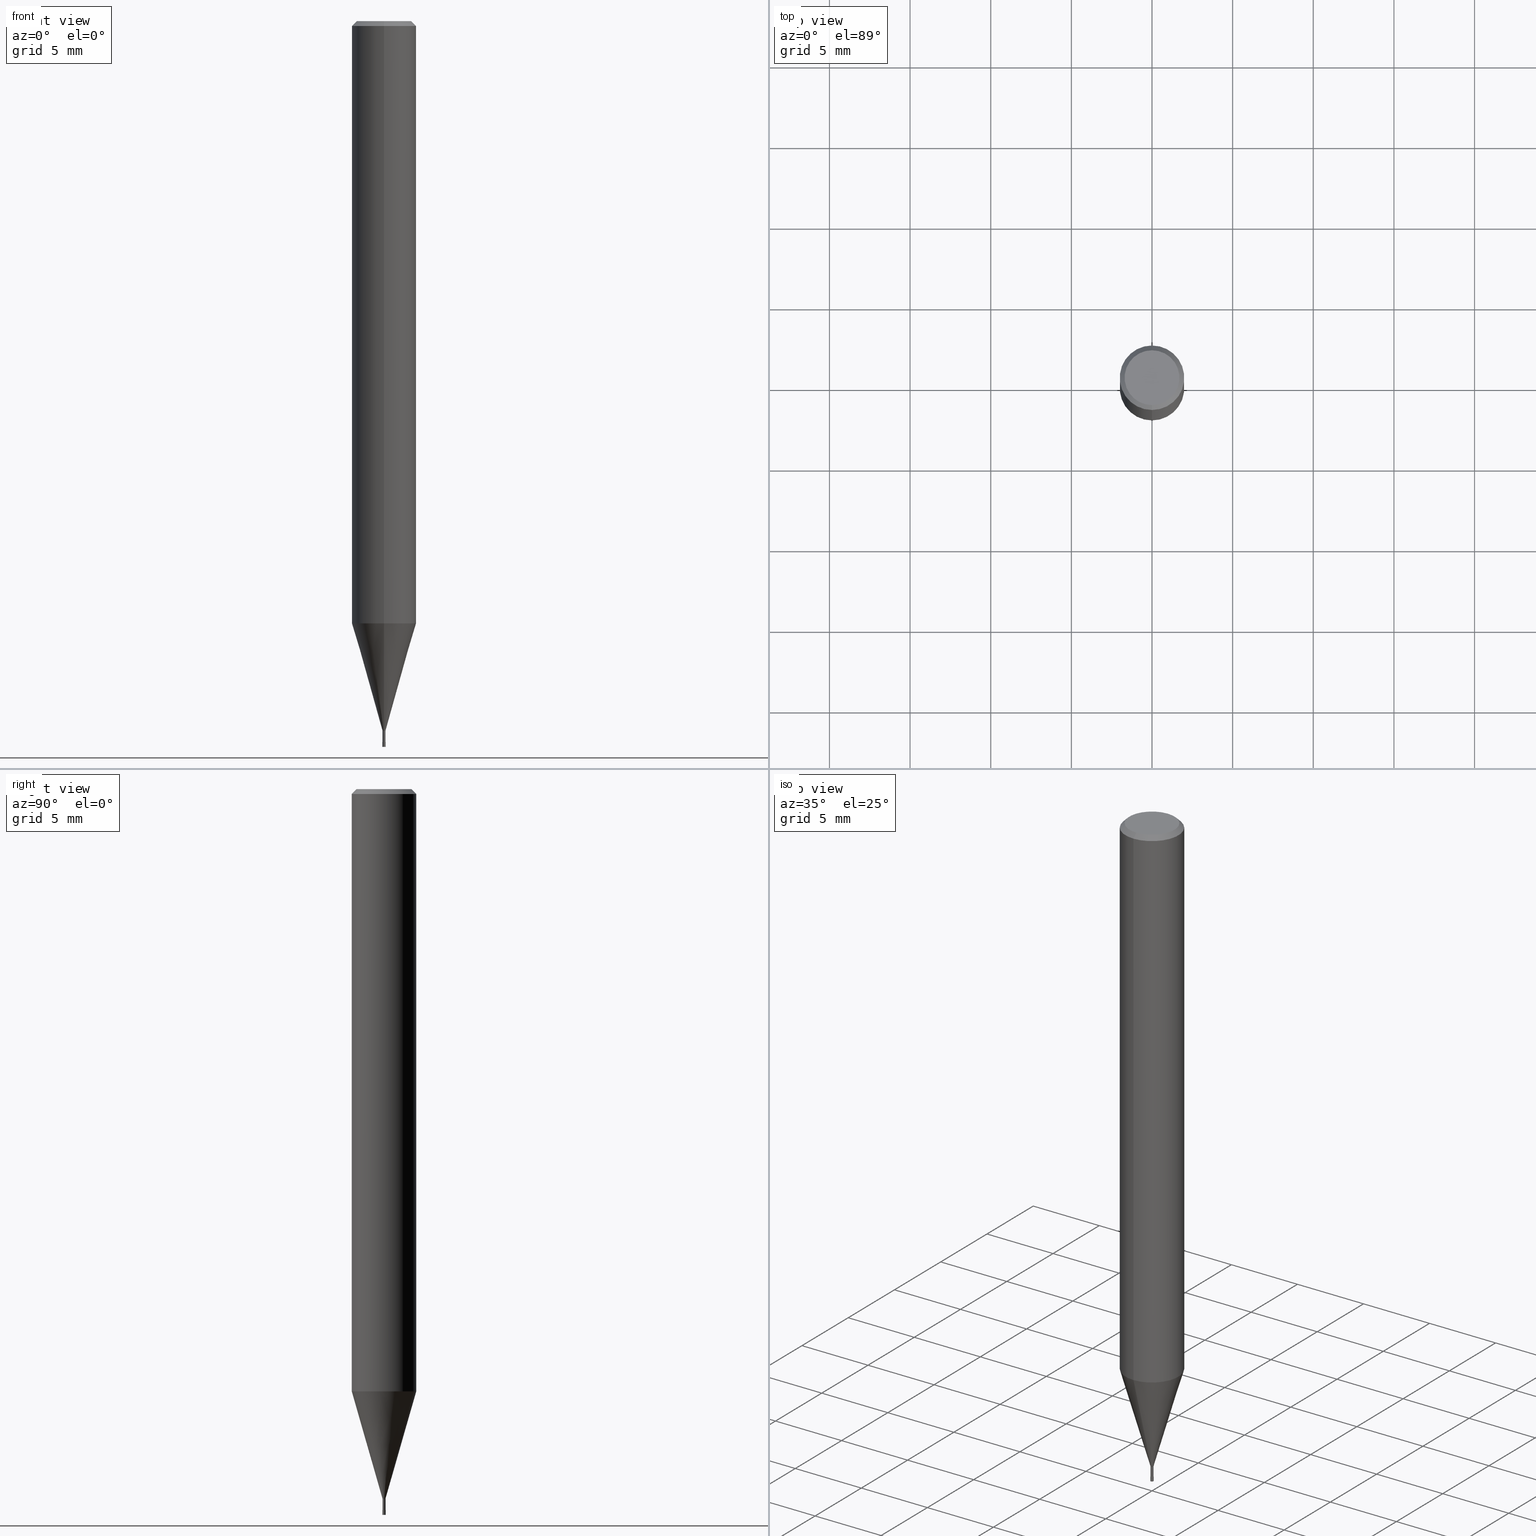
[diagram: canonical four-view strip — front | top / right | iso, engineering-drawing reading convention]
A machine part, canonical four-view strip (front | top / right | iso — engineering-drawing reading convention). The complete STEP part file that produces these views, byte-faithful:
ISO-10303-21;
HEADER;
FILE_DESCRIPTION(('no description'),'unknown implementation level');
FILE_NAME('HLS2002-010-Huellk.stp','  ',('CIMSOURCE GmbH'),('CADClick - KiM GmbH - www.kimweb.de'),'unknown preprocess','ACIS','unknown authorization');
FILE_SCHEMA(('automotive_design'));
ENDSEC;
DATA;
#1=MECHANICAL_DESIGN_GEOMETRIC_PRESENTATION_REPRESENTATION(' ',(#14,#15,#16,#17,#18,#19,#20,#21,#22,#23,#24,#25,#26,#27,#28,#29,#30,#31,#32,#33,#34,#35,#36,#37,#38,#39,#40,#41,#42,#43,#44,#45,#46,#47,#48,#49,#50,#51,#52,#53,#54,#55,#56,#57,#58,#59,#60,#61,#62,#63,#64,#65,#66,#67,#68,#69,#70,#71,#72),#10);
#2=PRODUCT_DEFINITION_CONTEXT('',#73,'design');
#3=APPLICATION_PROTOCOL_DEFINITION('INTERNATIONAL STANDARD','automotive_design',1994,#73);
#4=PRODUCT_CATEGORY_RELATIONSHIP('NONE','NONE',#74,#75);
#5=SHAPE_DEFINITION_REPRESENTATION(#76,#77);
#6=PRODUCT_DEFINITION_CONTEXT('',#78,'design');
#7=APPLICATION_PROTOCOL_DEFINITION('INTERNATIONAL STANDARD','automotive_design',1994,#78);
#8=PRODUCT_CATEGORY_RELATIONSHIP('NONE','NONE',#79,#80);
#9=SHAPE_DEFINITION_REPRESENTATION(#81,#82);
#10= (GEOMETRIC_REPRESENTATION_CONTEXT(3)GLOBAL_UNCERTAINTY_ASSIGNED_CONTEXT((#85))GLOBAL_UNIT_ASSIGNED_CONTEXT((#87,#88,#89))REPRESENTATION_CONTEXT('NONE','WORKSPACE'));
#14=STYLED_ITEM('',(#91),#92);
#15=STYLED_ITEM('',(#93),#94);
#16=STYLED_ITEM('',(#95),#96);
#17=STYLED_ITEM('',(#97),#98);
#18=STYLED_ITEM('',(#99),#100);
#19=STYLED_ITEM('',(#101),#102);
#20=STYLED_ITEM('',(#103),#104);
#21=STYLED_ITEM('',(#105),#106);
#22=STYLED_ITEM('',(#107),#108);
#23=STYLED_ITEM('',(#109),#110);
#24=STYLED_ITEM('',(#111),#112);
#25=STYLED_ITEM('',(#113),#114);
#26=STYLED_ITEM('',(#115),#116);
#27=STYLED_ITEM('',(#117),#118);
#28=STYLED_ITEM('',(#119),#120);
#29=STYLED_ITEM('',(#121),#122);
#30=STYLED_ITEM('',(#123),#124);
#31=STYLED_ITEM('',(#125),#126);
#32=STYLED_ITEM('',(#127),#128);
#33=STYLED_ITEM('',(#129),#130);
#34=STYLED_ITEM('',(#131),#132);
#35=STYLED_ITEM('',(#133),#134);
#36=STYLED_ITEM('',(#135),#136);
#37=STYLED_ITEM('',(#137),#138);
#38=STYLED_ITEM('',(#139),#140);
#39=STYLED_ITEM('',(#141),#142);
#40=STYLED_ITEM('',(#143),#144);
#41=STYLED_ITEM('',(#145),#146);
#42=STYLED_ITEM('',(#147),#148);
#43=STYLED_ITEM('',(#149),#150);
#44=STYLED_ITEM('',(#151),#152);
#45=STYLED_ITEM('',(#153),#154);
#46=STYLED_ITEM('',(#155),#156);
#47=STYLED_ITEM('',(#157),#158);
#48=STYLED_ITEM('',(#159),#160);
#49=STYLED_ITEM('',(#161),#162);
#50=STYLED_ITEM('',(#163),#164);
#51=STYLED_ITEM('',(#165),#166);
#52=STYLED_ITEM('',(#167),#168);
#53=STYLED_ITEM('',(#169),#170);
#54=STYLED_ITEM('',(#171),#172);
#55=STYLED_ITEM('',(#173),#174);
#56=STYLED_ITEM('',(#175),#176);
#57=STYLED_ITEM('',(#177),#178);
#58=STYLED_ITEM('',(#179),#180);
#59=STYLED_ITEM('',(#181),#182);
#60=STYLED_ITEM('',(#183),#184);
#61=STYLED_ITEM('',(#185),#186);
#62=STYLED_ITEM('',(#187),#188);
#63=STYLED_ITEM('',(#189),#190);
#64=STYLED_ITEM('',(#191),#192);
#65=STYLED_ITEM('',(#193),#194);
#66=STYLED_ITEM('',(#195),#196);
#67=STYLED_ITEM('',(#197),#198);
#68=STYLED_ITEM('',(#199),#200);
#69=STYLED_ITEM('',(#201),#202);
#70=STYLED_ITEM('',(#203),#204);
#71=STYLED_ITEM('',(#205),#206);
#72=STYLED_ITEM('',(#207),#208);
#73=APPLICATION_CONTEXT(' ');
#74=PRODUCT_CATEGORY('part','NONE');
#75=PRODUCT_RELATED_PRODUCT_CATEGORY('detail',' ',(#209));
#76=PRODUCT_DEFINITION_SHAPE('NONE','NONE',#210);
#77=ADVANCED_BREP_SHAPE_REPRESENTATION('1',(#108,#211),#10);
#78=APPLICATION_CONTEXT(' ');
#79=PRODUCT_CATEGORY('part','NONE');
#80=PRODUCT_RELATED_PRODUCT_CATEGORY('detail',' ',(#212));
#81=PRODUCT_DEFINITION_SHAPE('NONE','NONE',#213);
#82=ADVANCED_BREP_SHAPE_REPRESENTATION('2',(#122,#214),#10);
#85=UNCERTAINTY_MEASURE_WITH_UNIT(LENGTH_MEASURE(1.0E-006),#87,'','');
#87= (CONVERSION_BASED_UNIT('MILLIMETRE',#217)LENGTH_UNIT()NAMED_UNIT(#220));
#88= (NAMED_UNIT(#222)PLANE_ANGLE_UNIT()SI_UNIT($,.RADIAN.));
#89= (NAMED_UNIT(#222)SOLID_ANGLE_UNIT()SI_UNIT($,.STERADIAN.));
#91=PRESENTATION_STYLE_ASSIGNMENT((#228));
#92=ADVANCED_FACE('',(#229),#230,.T.);
#93=PRESENTATION_STYLE_ASSIGNMENT((#231));
#94=EDGE_CURVE('',#136,#102,#232,.T.);
#95=PRESENTATION_STYLE_ASSIGNMENT((#233));
#96=EDGE_CURVE('',#110,#170,#234,.T.);
#97=PRESENTATION_STYLE_ASSIGNMENT((#235));
#98=VERTEX_POINT('',#236);
#99=PRESENTATION_STYLE_ASSIGNMENT((#237));
#100=ADVANCED_FACE('',(#238),#239,.T.);
#101=PRESENTATION_STYLE_ASSIGNMENT((#240));
#102=VERTEX_POINT('',#241);
#103=PRESENTATION_STYLE_ASSIGNMENT((#242));
#104=EDGE_CURVE('',#198,#110,#243,.T.);
#105=PRESENTATION_STYLE_ASSIGNMENT((#244));
#106=VERTEX_POINT('',#245);
#107=PRESENTATION_STYLE_ASSIGNMENT((#246));
#108=MANIFOLD_SOLID_BREP('1',#247);
#109=PRESENTATION_STYLE_ASSIGNMENT((#248));
#110=VERTEX_POINT('',#249);
#111=PRESENTATION_STYLE_ASSIGNMENT((#250));
#112=EDGE_CURVE('',#198,#178,#251,.T.);
#113=PRESENTATION_STYLE_ASSIGNMENT((#252));
#114=ADVANCED_FACE('',(#253),#254,.T.);
#115=PRESENTATION_STYLE_ASSIGNMENT((#255));
#116=EDGE_CURVE('',#170,#132,#256,.T.);
#117=PRESENTATION_STYLE_ASSIGNMENT((#257));
#118=ADVANCED_FACE('',(#258),#259,.T.);
#119=PRESENTATION_STYLE_ASSIGNMENT((#260));
#120=EDGE_CURVE('',#144,#158,#261,.T.);
#121=PRESENTATION_STYLE_ASSIGNMENT((#262));
#122=MANIFOLD_SOLID_BREP('2',#263);
#123=PRESENTATION_STYLE_ASSIGNMENT((#264));
#124=ADVANCED_FACE('',(#265),#266,.T.);
#125=PRESENTATION_STYLE_ASSIGNMENT((#267));
#126=EDGE_CURVE('',#102,#128,#268,.T.);
#127=PRESENTATION_STYLE_ASSIGNMENT((#269));
#128=VERTEX_POINT('',#270);
#129=PRESENTATION_STYLE_ASSIGNMENT((#271));
#130=ADVANCED_FACE('',(#272),#273,.T.);
#131=PRESENTATION_STYLE_ASSIGNMENT((#274));
#132=VERTEX_POINT('',#275);
#133=PRESENTATION_STYLE_ASSIGNMENT((#276));
#134=ADVANCED_FACE('',(#277),#278,.T.);
#135=PRESENTATION_STYLE_ASSIGNMENT((#279));
#136=VERTEX_POINT('',#280);
#137=PRESENTATION_STYLE_ASSIGNMENT((#281));
#138=VERTEX_POINT('',#282);
#139=PRESENTATION_STYLE_ASSIGNMENT((#283));
#140=EDGE_CURVE('',#132,#170,#284,.T.);
#141=PRESENTATION_STYLE_ASSIGNMENT((#285));
#142=EDGE_CURVE('',#102,#186,#286,.T.);
#143=PRESENTATION_STYLE_ASSIGNMENT((#287));
#144=VERTEX_POINT('',#288);
#145=PRESENTATION_STYLE_ASSIGNMENT((#289));
#146=ADVANCED_FACE('',(#290),#291,.T.);
#147=PRESENTATION_STYLE_ASSIGNMENT((#292));
#148=ADVANCED_FACE('',(#293),#294,.T.);
#149=PRESENTATION_STYLE_ASSIGNMENT((#295));
#150=EDGE_CURVE('',#136,#194,#296,.T.);
#151=PRESENTATION_STYLE_ASSIGNMENT((#297));
#152=EDGE_CURVE('',#196,#128,#298,.T.);
#153=PRESENTATION_STYLE_ASSIGNMENT((#299));
#154=EDGE_CURVE('',#98,#110,#300,.T.);
#155=PRESENTATION_STYLE_ASSIGNMENT((#301));
#156=EDGE_CURVE('',#138,#144,#302,.T.);
#157=PRESENTATION_STYLE_ASSIGNMENT((#303));
#158=VERTEX_POINT('',#304);
#159=PRESENTATION_STYLE_ASSIGNMENT((#305));
#160=EDGE_CURVE('',#144,#138,#306,.T.);
#161=PRESENTATION_STYLE_ASSIGNMENT((#307));
#162=EDGE_CURVE('',#110,#98,#308,.T.);
#163=PRESENTATION_STYLE_ASSIGNMENT((#309));
#164=EDGE_CURVE('',#132,#98,#310,.T.);
#165=PRESENTATION_STYLE_ASSIGNMENT((#311));
#166=ADVANCED_FACE('',(#312),#313,.T.);
#167=PRESENTATION_STYLE_ASSIGNMENT((#314));
#168=EDGE_CURVE('',#98,#178,#315,.T.);
#169=PRESENTATION_STYLE_ASSIGNMENT((#316));
#170=VERTEX_POINT('',#317);
#171=PRESENTATION_STYLE_ASSIGNMENT((#318));
#172=ADVANCED_FACE('',(#319),#320,.T.);
#173=PRESENTATION_STYLE_ASSIGNMENT((#321));
#174=EDGE_CURVE('',#186,#102,#322,.T.);
#175=PRESENTATION_STYLE_ASSIGNMENT((#323));
#176=EDGE_CURVE('',#128,#196,#324,.T.);
#177=PRESENTATION_STYLE_ASSIGNMENT((#325));
#178=VERTEX_POINT('',#326);
#179=PRESENTATION_STYLE_ASSIGNMENT((#327));
#180=EDGE_CURVE('',#158,#106,#328,.T.);
#181=PRESENTATION_STYLE_ASSIGNMENT((#329));
#182=EDGE_CURVE('',#194,#136,#330,.T.);
#183=PRESENTATION_STYLE_ASSIGNMENT((#331));
#184=EDGE_CURVE('',#106,#138,#332,.T.);
#185=PRESENTATION_STYLE_ASSIGNMENT((#333));
#186=VERTEX_POINT('',#334);
#187=PRESENTATION_STYLE_ASSIGNMENT((#335));
#188=ADVANCED_FACE('',(#336),#337,.T.);
#189=PRESENTATION_STYLE_ASSIGNMENT((#338));
#190=EDGE_CURVE('',#186,#194,#339,.T.);
#191=PRESENTATION_STYLE_ASSIGNMENT((#340));
#192=EDGE_CURVE('',#196,#186,#341,.T.);
#193=PRESENTATION_STYLE_ASSIGNMENT((#342));
#194=VERTEX_POINT('',#343);
#195=PRESENTATION_STYLE_ASSIGNMENT((#344));
#196=VERTEX_POINT('',#345);
#197=PRESENTATION_STYLE_ASSIGNMENT((#346));
#198=VERTEX_POINT('',#347);
#199=PRESENTATION_STYLE_ASSIGNMENT((#348));
#200=EDGE_CURVE('',#178,#198,#349,.T.);
#201=PRESENTATION_STYLE_ASSIGNMENT((#350));
#202=ADVANCED_FACE('',(#351,#352),#353,.T.);
#203=PRESENTATION_STYLE_ASSIGNMENT((#354));
#204=ADVANCED_FACE('',(#355),#356,.T.);
#205=PRESENTATION_STYLE_ASSIGNMENT((#357));
#206=ADVANCED_FACE('',(#358),#359,.T.);
#207=PRESENTATION_STYLE_ASSIGNMENT((#360));
#208=EDGE_CURVE('',#106,#158,#361,.T.);
#209=PRODUCT('1','1','PART-1-DESC',(#362));
#210=PRODUCT_DEFINITION('NONE','NONE',#363,#2);
#211=AXIS2_PLACEMENT_3D('',#364,#365,#366);
#212=PRODUCT('2','2','PART-2-DESC',(#367));
#213=PRODUCT_DEFINITION('NONE','NONE',#368,#6);
#214=AXIS2_PLACEMENT_3D('',#369,#370,#371);
#217=LENGTH_MEASURE_WITH_UNIT(LENGTH_MEASURE(1.0),#372);
#220=DIMENSIONAL_EXPONENTS(1.0,0.0,0.0,0.0,0.0,0.0,0.0);
#222=DIMENSIONAL_EXPONENTS(0.0,0.0,0.0,0.0,0.0,0.0,0.0);
#228=SURFACE_STYLE_USAGE(.BOTH.,#373);
#229=FACE_OUTER_BOUND('',#374,.T.);
#230=CONICAL_SURFACE('',#375,1.85,0.785398163397453);
#231=CURVE_STYLE('',#376,POSITIVE_LENGTH_MEASURE(1.0E-006),#377);
#232=LINE('',#378,#379);
#233=CURVE_STYLE('',#380,POSITIVE_LENGTH_MEASURE(1.0E-006),#381);
#234=LINE('',#382,#383);
#235=POINT_STYLE(' ',#384,POSITIVE_LENGTH_MEASURE(1.0E-006),#385);
#236=CARTESIAN_POINT('',(2.44921270764475E-016,-2.0,-0.299999999999997));
#237=SURFACE_STYLE_USAGE(.BOTH.,#386);
#238=FACE_OUTER_BOUND('',#387,.T.);
#239=CYLINDRICAL_SURFACE('',#388,0.08995);
#240=POINT_STYLE(' ',#389,POSITIVE_LENGTH_MEASURE(1.0E-006),#390);
#241=CARTESIAN_POINT('',(1.10153341526323E-017,-0.08995,-44.0));
#242=CURVE_STYLE('',#391,POSITIVE_LENGTH_MEASURE(1.0E-006),#392);
#243=LINE('',#393,#394);
#244=POINT_STYLE(' ',#395,POSITIVE_LENGTH_MEASURE(1.0E-006),#396);
#245=CARTESIAN_POINT('',(0.0,0.0999,-44.7));
#246=SURFACE_STYLE_USAGE(.BOTH.,#397);
#247=CLOSED_SHELL('',(#166,#114,#134,#146,#202,#188,#92,#172,#204,#100,#148));
#248=POINT_STYLE(' ',#398,POSITIVE_LENGTH_MEASURE(1.0E-006),#399);
#249=CARTESIAN_POINT('',(0.0,2.0,-0.299999999999997));
#250=CURVE_STYLE('',#400,POSITIVE_LENGTH_MEASURE(1.0E-006),#401);
#251=CIRCLE('',#402,1.7);
#252=SURFACE_STYLE_USAGE(.BOTH.,#403);
#253=FACE_OUTER_BOUND('',#404,.T.);
#254=CONICAL_SURFACE('',#405,1.04495,0.279251152364767);
#255=CURVE_STYLE('',#406,POSITIVE_LENGTH_MEASURE(1.0E-006),#407);
#256=CIRCLE('',#408,2.0);
#257=SURFACE_STYLE_USAGE(.BOTH.,#409);
#258=FACE_OUTER_BOUND('',#410,.T.);
#259=PLANE('',#411);
#260=CURVE_STYLE('',#412,POSITIVE_LENGTH_MEASURE(1.0E-006),#413);
#261=LINE('',#414,#415);
#262=SURFACE_STYLE_USAGE(.BOTH.,#416);
#263=CLOSED_SHELL('',(#124,#118,#130,#206));
#264=SURFACE_STYLE_USAGE(.BOTH.,#417);
#265=FACE_OUTER_BOUND('',#418,.T.);
#266=CONICAL_SURFACE('',#419,0.09995,0.000333333320987665);
#267=CURVE_STYLE('',#420,POSITIVE_LENGTH_MEASURE(1.0E-006),#421);
#268=LINE('',#422,#423);
#269=POINT_STYLE(' ',#424,POSITIVE_LENGTH_MEASURE(1.0E-006),#425);
#270=CARTESIAN_POINT('',(2.44915147732706E-016,-1.99995,-37.339));
#271=SURFACE_STYLE_USAGE(.BOTH.,#426);
#272=FACE_OUTER_BOUND('',#427,.T.);
#273=CONICAL_SURFACE('',#428,0.09995,0.000333333320987665);
#274=POINT_STYLE(' ',#429,POSITIVE_LENGTH_MEASURE(1.0E-006),#430);
#275=CARTESIAN_POINT('',(2.44921270764475E-016,-2.0,-37.339));
#276=SURFACE_STYLE_USAGE(.BOTH.,#431);
#277=FACE_OUTER_BOUND('',#432,.T.);
#278=CYLINDRICAL_SURFACE('',#433,2.0);
#279=POINT_STYLE(' ',#434,POSITIVE_LENGTH_MEASURE(1.0E-006),#435);
#280=CARTESIAN_POINT('',(1.10153341526323E-017,-0.08995,-44.7));
#281=POINT_STYLE(' ',#436,POSITIVE_LENGTH_MEASURE(1.0E-006),#437);
#282=CARTESIAN_POINT('',(0.0,0.1,-45.0));
#283=CURVE_STYLE('',#438,POSITIVE_LENGTH_MEASURE(1.0E-006),#439);
#284=CIRCLE('',#440,2.0);
#285=CURVE_STYLE('',#441,POSITIVE_LENGTH_MEASURE(1.0E-006),#442);
#286=CIRCLE('',#443,0.08995);
#287=POINT_STYLE(' ',#444,POSITIVE_LENGTH_MEASURE(1.0E-006),#445);
#288=CARTESIAN_POINT('',(1.22460635382238E-017,-0.1,-45.0));
#289=SURFACE_STYLE_USAGE(.BOTH.,#446);
#290=FACE_OUTER_BOUND('',#447,.T.);
#291=CONICAL_SURFACE('',#448,1.85,0.785398163397453);
#292=SURFACE_STYLE_USAGE(.BOTH.,#449);
#293=FACE_OUTER_BOUND('',#450,.T.);
#294=PLANE('',#451);
#295=CURVE_STYLE('',#452,POSITIVE_LENGTH_MEASURE(1.0E-006),#453);
#296=CIRCLE('',#454,0.08995);
#297=CURVE_STYLE('',#455,POSITIVE_LENGTH_MEASURE(1.0E-006),#456);
#298=CIRCLE('',#457,1.99995);
#299=CURVE_STYLE('',#458,POSITIVE_LENGTH_MEASURE(1.0E-006),#459);
#300=CIRCLE('',#460,2.0);
#301=CURVE_STYLE('',#461,POSITIVE_LENGTH_MEASURE(1.0E-006),#462);
#302=CIRCLE('',#463,0.1);
#303=POINT_STYLE(' ',#464,POSITIVE_LENGTH_MEASURE(1.0E-006),#465);
#304=CARTESIAN_POINT('',(1.22338174746855E-017,-0.0999,-44.7));
#305=CURVE_STYLE('',#466,POSITIVE_LENGTH_MEASURE(1.0E-006),#467);
#306=CIRCLE('',#468,0.1);
#307=CURVE_STYLE('',#469,POSITIVE_LENGTH_MEASURE(1.0E-006),#470);
#308=CIRCLE('',#471,2.0);
#309=CURVE_STYLE('',#472,POSITIVE_LENGTH_MEASURE(1.0E-006),#473);
#310=LINE('',#474,#475);
#311=SURFACE_STYLE_USAGE(.BOTH.,#476);
#312=FACE_OUTER_BOUND('',#477,.T.);
#313=CYLINDRICAL_SURFACE('',#478,0.08995);
#314=CURVE_STYLE('',#479,POSITIVE_LENGTH_MEASURE(1.0E-006),#480);
#315=LINE('',#481,#482);
#316=POINT_STYLE(' ',#483,POSITIVE_LENGTH_MEASURE(1.0E-006),#484);
#317=CARTESIAN_POINT('',(0.0,2.0,-37.339));
#318=SURFACE_STYLE_USAGE(.BOTH.,#485);
#319=FACE_OUTER_BOUND('',#486,.T.);
#320=CYLINDRICAL_SURFACE('',#487,2.0);
#321=CURVE_STYLE('',#488,POSITIVE_LENGTH_MEASURE(1.0E-006),#489);
#322=CIRCLE('',#490,0.08995);
#323=CURVE_STYLE('',#491,POSITIVE_LENGTH_MEASURE(1.0E-006),#492);
#324=CIRCLE('',#493,1.99995);
#325=POINT_STYLE(' ',#494,POSITIVE_LENGTH_MEASURE(1.0E-006),#495);
#326=CARTESIAN_POINT('',(2.08183080149804E-016,-1.7,0.0));
#327=CURVE_STYLE('',#496,POSITIVE_LENGTH_MEASURE(1.0E-006),#497);
#328=CIRCLE('',#498,0.0999);
#329=CURVE_STYLE('',#499,POSITIVE_LENGTH_MEASURE(1.0E-006),#500);
#330=CIRCLE('',#501,0.08995);
#331=CURVE_STYLE('',#502,POSITIVE_LENGTH_MEASURE(1.0E-006),#503);
#332=LINE('',#504,#505);
#333=POINT_STYLE(' ',#506,POSITIVE_LENGTH_MEASURE(1.0E-006),#507);
#334=CARTESIAN_POINT('',(0.0,0.08995,-44.0));
#335=SURFACE_STYLE_USAGE(.BOTH.,#508);
#336=FACE_OUTER_BOUND('',#509,.T.);
#337=PLANE('',#510);
#338=CURVE_STYLE('',#511,POSITIVE_LENGTH_MEASURE(1.0E-006),#512);
#339=LINE('',#513,#514);
#340=CURVE_STYLE('',#515,POSITIVE_LENGTH_MEASURE(1.0E-006),#516);
#341=LINE('',#517,#518);
#342=POINT_STYLE(' ',#519,POSITIVE_LENGTH_MEASURE(1.0E-006),#520);
#343=CARTESIAN_POINT('',(0.0,0.08995,-44.7));
#344=POINT_STYLE(' ',#521,POSITIVE_LENGTH_MEASURE(1.0E-006),#522);
#345=CARTESIAN_POINT('',(0.0,1.99995,-37.339));
#346=POINT_STYLE(' ',#523,POSITIVE_LENGTH_MEASURE(1.0E-006),#524);
#347=CARTESIAN_POINT('',(0.0,1.7,0.0));
#348=CURVE_STYLE('',#525,POSITIVE_LENGTH_MEASURE(1.0E-006),#526);
#349=CIRCLE('',#527,1.7);
#350=SURFACE_STYLE_USAGE(.BOTH.,#528);
#351=FACE_OUTER_BOUND('',#529,.T.);
#352=FACE_BOUND('',#530,.T.);
#353=PLANE('',#531);
#354=SURFACE_STYLE_USAGE(.BOTH.,#532);
#355=FACE_OUTER_BOUND('',#533,.T.);
#356=CONICAL_SURFACE('',#534,1.04495,0.279251152364767);
#357=SURFACE_STYLE_USAGE(.BOTH.,#535);
#358=FACE_OUTER_BOUND('',#536,.T.);
#359=PLANE('',#537);
#360=CURVE_STYLE('',#538,POSITIVE_LENGTH_MEASURE(1.0E-006),#539);
#361=CIRCLE('',#540,0.0999);
#362=PRODUCT_CONTEXT('',#73,'mechanical');
#363=PRODUCT_DEFINITION_FORMATION_WITH_SPECIFIED_SOURCE(' ','NONE',#209,.NOT_KNOWN.);
#364=CARTESIAN_POINT('',(0.0,0.0,0.0));
#365=DIRECTION('',(0.0,0.0,1.0));
#366=DIRECTION('',(1.0,0.0,0.0));
#367=PRODUCT_CONTEXT('',#78,'mechanical');
#368=PRODUCT_DEFINITION_FORMATION_WITH_SPECIFIED_SOURCE(' ','NONE',#212,.NOT_KNOWN.);
#369=CARTESIAN_POINT('',(0.0,0.0,0.0));
#370=DIRECTION('',(0.0,0.0,1.0));
#371=DIRECTION('',(1.0,0.0,0.0));
#372= (NAMED_UNIT(#220)LENGTH_UNIT()SI_UNIT(.MILLI.,.METRE.));
#373=SURFACE_SIDE_STYLE('',(#542));
#374=EDGE_LOOP('',(#543,#544,#545,#546));
#375=AXIS2_PLACEMENT_3D('',#547,#548,#549);
#376=DRAUGHTING_PRE_DEFINED_CURVE_FONT('continuous');
#377=COLOUR_RGB('',0.498039215803146,0.498039215803146,0.498039215803146);
#378=CARTESIAN_POINT('',(1.10153341526323E-017,-0.08995,-44.35));
#379=VECTOR('',#550,1.0);
#380=DRAUGHTING_PRE_DEFINED_CURVE_FONT('continuous');
#381=COLOUR_RGB('',0.498039215803146,0.498039215803146,0.498039215803146);
#382=CARTESIAN_POINT('',(-2.44921270764475E-016,2.0,-18.8195));
#383=VECTOR('',#551,1.0);
#384=PRE_DEFINED_MARKER('');
#385=COLOUR_RGB('',0.498039215803146,0.498039215803146,0.498039215803146);
#386=SURFACE_SIDE_STYLE('',(#552));
#387=EDGE_LOOP('',(#553,#554,#555,#556));
#388=AXIS2_PLACEMENT_3D('',#557,#558,#559);
#389=PRE_DEFINED_MARKER('');
#390=COLOUR_RGB('',0.498039215803146,0.498039215803146,0.498039215803146);
#391=DRAUGHTING_PRE_DEFINED_CURVE_FONT('continuous');
#392=COLOUR_RGB('',0.498039215803146,0.498039215803146,0.498039215803146);
#393=CARTESIAN_POINT('',(-2.2655217545714E-016,1.85,-0.149999999999999));
#394=VECTOR('',#560,1.0);
#395=PRE_DEFINED_MARKER('');
#396=COLOUR_RGB('',0.800000011920929,0.800000011920929,0.800000011920929);
#397=SURFACE_SIDE_STYLE('',(#561));
#398=PRE_DEFINED_MARKER('');
#399=COLOUR_RGB('',0.498039215803146,0.498039215803146,0.498039215803146);
#400=DRAUGHTING_PRE_DEFINED_CURVE_FONT('continuous');
#401=COLOUR_RGB('',0.498039215803146,0.498039215803146,0.498039215803146);
#402=AXIS2_PLACEMENT_3D('',#562,#563,#564);
#403=SURFACE_SIDE_STYLE('',(#565));
#404=EDGE_LOOP('',(#566,#567,#568,#569));
#405=AXIS2_PLACEMENT_3D('',#570,#571,#572);
#406=DRAUGHTING_PRE_DEFINED_CURVE_FONT('continuous');
#407=COLOUR_RGB('',0.498039215803146,0.498039215803146,0.498039215803146);
#408=AXIS2_PLACEMENT_3D('',#573,#574,#575);
#409=SURFACE_SIDE_STYLE('',(#576));
#410=EDGE_LOOP('',(#577,#578));
#411=AXIS2_PLACEMENT_3D('',#579,#580,#581);
#412=DRAUGHTING_PRE_DEFINED_CURVE_FONT('continuous');
#413=COLOUR_RGB('',0.800000011920929,0.800000011920929,0.800000011920929);
#414=CARTESIAN_POINT('',(1.22399405064547E-017,-0.09995,-44.85));
#415=VECTOR('',#582,1.0);
#416=SURFACE_SIDE_STYLE('',(#583));
#417=SURFACE_SIDE_STYLE('',(#584));
#418=EDGE_LOOP('',(#585,#586,#587,#588));
#419=AXIS2_PLACEMENT_3D('',#589,#590,#591);
#420=DRAUGHTING_PRE_DEFINED_CURVE_FONT('continuous');
#421=COLOUR_RGB('',0.498039215803146,0.498039215803146,0.498039215803146);
#422=CARTESIAN_POINT('',(1.27965240942669E-016,-1.04495,-40.6695));
#423=VECTOR('',#592,1.0);
#424=PRE_DEFINED_MARKER('');
#425=COLOUR_RGB('',0.498039215803146,0.498039215803146,0.498039215803146);
#426=SURFACE_SIDE_STYLE('',(#593));
#427=EDGE_LOOP('',(#594,#595,#596,#597));
#428=AXIS2_PLACEMENT_3D('',#598,#599,#600);
#429=PRE_DEFINED_MARKER('');
#430=COLOUR_RGB('',0.498039215803146,0.498039215803146,0.498039215803146);
#431=SURFACE_SIDE_STYLE('',(#601));
#432=EDGE_LOOP('',(#602,#603,#604,#605));
#433=AXIS2_PLACEMENT_3D('',#606,#607,#608);
#434=PRE_DEFINED_MARKER('');
#435=COLOUR_RGB('',0.498039215803146,0.498039215803146,0.498039215803146);
#436=PRE_DEFINED_MARKER('');
#437=COLOUR_RGB('',0.800000011920929,0.800000011920929,0.800000011920929);
#438=DRAUGHTING_PRE_DEFINED_CURVE_FONT('continuous');
#439=COLOUR_RGB('',0.498039215803146,0.498039215803146,0.498039215803146);
#440=AXIS2_PLACEMENT_3D('',#609,#610,#611);
#441=DRAUGHTING_PRE_DEFINED_CURVE_FONT('continuous');
#442=COLOUR_RGB('',0.498039215803146,0.498039215803146,0.498039215803146);
#443=AXIS2_PLACEMENT_3D('',#612,#613,#614);
#444=PRE_DEFINED_MARKER('');
#445=COLOUR_RGB('',0.800000011920929,0.800000011920929,0.800000011920929);
#446=SURFACE_SIDE_STYLE('',(#615));
#447=EDGE_LOOP('',(#616,#617,#618,#619));
#448=AXIS2_PLACEMENT_3D('',#620,#621,#622);
#449=SURFACE_SIDE_STYLE('',(#623));
#450=EDGE_LOOP('',(#624,#625));
#451=AXIS2_PLACEMENT_3D('',#626,#627,#628);
#452=DRAUGHTING_PRE_DEFINED_CURVE_FONT('continuous');
#453=COLOUR_RGB('',0.498039215803146,0.498039215803146,0.498039215803146);
#454=AXIS2_PLACEMENT_3D('',#629,#630,#631);
#455=DRAUGHTING_PRE_DEFINED_CURVE_FONT('continuous');
#456=COLOUR_RGB('',0.498039215803146,0.498039215803146,0.498039215803146);
#457=AXIS2_PLACEMENT_3D('',#632,#633,#634);
#458=DRAUGHTING_PRE_DEFINED_CURVE_FONT('continuous');
#459=COLOUR_RGB('',0.498039215803146,0.498039215803146,0.498039215803146);
#460=AXIS2_PLACEMENT_3D('',#635,#636,#637);
#461=DRAUGHTING_PRE_DEFINED_CURVE_FONT('continuous');
#462=COLOUR_RGB('',0.800000011920929,0.800000011920929,0.800000011920929);
#463=AXIS2_PLACEMENT_3D('',#638,#639,#640);
#464=PRE_DEFINED_MARKER('');
#465=COLOUR_RGB('',0.800000011920929,0.800000011920929,0.800000011920929);
#466=DRAUGHTING_PRE_DEFINED_CURVE_FONT('continuous');
#467=COLOUR_RGB('',0.800000011920929,0.800000011920929,0.800000011920929);
#468=AXIS2_PLACEMENT_3D('',#641,#642,#643);
#469=DRAUGHTING_PRE_DEFINED_CURVE_FONT('continuous');
#470=COLOUR_RGB('',0.498039215803146,0.498039215803146,0.498039215803146);
#471=AXIS2_PLACEMENT_3D('',#644,#645,#646);
#472=DRAUGHTING_PRE_DEFINED_CURVE_FONT('continuous');
#473=COLOUR_RGB('',0.498039215803146,0.498039215803146,0.498039215803146);
#474=CARTESIAN_POINT('',(2.44921270764475E-016,-2.0,-18.8195));
#475=VECTOR('',#647,1.0);
#476=SURFACE_SIDE_STYLE('',(#648));
#477=EDGE_LOOP('',(#649,#650,#651,#652));
#478=AXIS2_PLACEMENT_3D('',#653,#654,#655);
#479=DRAUGHTING_PRE_DEFINED_CURVE_FONT('continuous');
#480=COLOUR_RGB('',0.498039215803146,0.498039215803146,0.498039215803146);
#481=CARTESIAN_POINT('',(2.2655217545714E-016,-1.85,-0.149999999999999));
#482=VECTOR('',#656,1.0);
#483=PRE_DEFINED_MARKER('');
#484=COLOUR_RGB('',0.498039215803146,0.498039215803146,0.498039215803146);
#485=SURFACE_SIDE_STYLE('',(#657));
#486=EDGE_LOOP('',(#658,#659,#660,#661));
#487=AXIS2_PLACEMENT_3D('',#662,#663,#664);
#488=DRAUGHTING_PRE_DEFINED_CURVE_FONT('continuous');
#489=COLOUR_RGB('',0.498039215803146,0.498039215803146,0.498039215803146);
#490=AXIS2_PLACEMENT_3D('',#665,#666,#667);
#491=DRAUGHTING_PRE_DEFINED_CURVE_FONT('continuous');
#492=COLOUR_RGB('',0.498039215803146,0.498039215803146,0.498039215803146);
#493=AXIS2_PLACEMENT_3D('',#668,#669,#670);
#494=PRE_DEFINED_MARKER('');
#495=COLOUR_RGB('',0.498039215803146,0.498039215803146,0.498039215803146);
#496=DRAUGHTING_PRE_DEFINED_CURVE_FONT('continuous');
#497=COLOUR_RGB('',0.800000011920929,0.800000011920929,0.800000011920929);
#498=AXIS2_PLACEMENT_3D('',#671,#672,#673);
#499=DRAUGHTING_PRE_DEFINED_CURVE_FONT('continuous');
#500=COLOUR_RGB('',0.498039215803146,0.498039215803146,0.498039215803146);
#501=AXIS2_PLACEMENT_3D('',#674,#675,#676);
#502=DRAUGHTING_PRE_DEFINED_CURVE_FONT('continuous');
#503=COLOUR_RGB('',0.800000011920929,0.800000011920929,0.800000011920929);
#504=CARTESIAN_POINT('',(-1.22399405064547E-017,0.09995,-44.85));
#505=VECTOR('',#677,1.0);
#506=PRE_DEFINED_MARKER('');
#507=COLOUR_RGB('',0.498039215803146,0.498039215803146,0.498039215803146);
#508=SURFACE_SIDE_STYLE('',(#678));
#509=EDGE_LOOP('',(#679,#680));
#510=AXIS2_PLACEMENT_3D('',#681,#682,#683);
#511=DRAUGHTING_PRE_DEFINED_CURVE_FONT('continuous');
#512=COLOUR_RGB('',0.498039215803146,0.498039215803146,0.498039215803146);
#513=CARTESIAN_POINT('',(-1.10153341526323E-017,0.08995,-44.35));
#514=VECTOR('',#684,1.0);
#515=DRAUGHTING_PRE_DEFINED_CURVE_FONT('continuous');
#516=COLOUR_RGB('',0.498039215803146,0.498039215803146,0.498039215803146);
#517=CARTESIAN_POINT('',(-1.27965240942669E-016,1.04495,-40.6695));
#518=VECTOR('',#685,1.0);
#519=PRE_DEFINED_MARKER('');
#520=COLOUR_RGB('',0.498039215803146,0.498039215803146,0.498039215803146);
#521=PRE_DEFINED_MARKER('');
#522=COLOUR_RGB('',0.498039215803146,0.498039215803146,0.498039215803146);
#523=PRE_DEFINED_MARKER('');
#524=COLOUR_RGB('',0.498039215803146,0.498039215803146,0.498039215803146);
#525=DRAUGHTING_PRE_DEFINED_CURVE_FONT('continuous');
#526=COLOUR_RGB('',0.498039215803146,0.498039215803146,0.498039215803146);
#527=AXIS2_PLACEMENT_3D('',#686,#687,#688);
#528=SURFACE_SIDE_STYLE('',(#689));
#529=EDGE_LOOP('',(#690,#691));
#530=EDGE_LOOP('',(#692,#693));
#531=AXIS2_PLACEMENT_3D('',#694,#695,#696);
#532=SURFACE_SIDE_STYLE('',(#697));
#533=EDGE_LOOP('',(#698,#699,#700,#701));
#534=AXIS2_PLACEMENT_3D('',#702,#703,#704);
#535=SURFACE_SIDE_STYLE('',(#705));
#536=EDGE_LOOP('',(#706,#707));
#537=AXIS2_PLACEMENT_3D('',#708,#709,#710);
#538=DRAUGHTING_PRE_DEFINED_CURVE_FONT('continuous');
#539=COLOUR_RGB('',0.800000011920929,0.800000011920929,0.800000011920929);
#540=AXIS2_PLACEMENT_3D('',#711,#712,#713);
#542=SURFACE_STYLE_FILL_AREA(#714);
#543=ORIENTED_EDGE('',*,*,#104,.T.);
#544=ORIENTED_EDGE('',*,*,#154,.F.);
#545=ORIENTED_EDGE('',*,*,#168,.T.);
#546=ORIENTED_EDGE('',*,*,#200,.T.);
#547=CARTESIAN_POINT('',(0.0,0.0,-0.149999999999999));
#548=DIRECTION('',(0.0,-0.0,-1.0));
#549=DIRECTION('',(0.0,1.0,0.0));
#550=DIRECTION('',(-0.0,-0.0,1.0));
#551=DIRECTION('',(0.0,0.0,-1.0));
#552=SURFACE_STYLE_FILL_AREA(#715);
#553=ORIENTED_EDGE('',*,*,#190,.T.);
#554=ORIENTED_EDGE('',*,*,#150,.F.);
#555=ORIENTED_EDGE('',*,*,#94,.T.);
#556=ORIENTED_EDGE('',*,*,#142,.T.);
#557=CARTESIAN_POINT('',(0.0,0.0,-44.35));
#558=DIRECTION('',(-0.0,-0.0,1.0));
#559=DIRECTION('',(0.0,1.0,0.0));
#560=DIRECTION('',(-8.6592745707194E-017,0.707106781186551,-0.707106781186544));
#561=SURFACE_STYLE_FILL_AREA(#716);
#562=CARTESIAN_POINT('',(0.0,0.0,0.0));
#563=DIRECTION('',(0.0,0.0,-1.0));
#564=DIRECTION('',(0.0,1.0,0.0));
#565=SURFACE_STYLE_FILL_AREA(#717);
#566=ORIENTED_EDGE('',*,*,#192,.F.);
#567=ORIENTED_EDGE('',*,*,#152,.T.);
#568=ORIENTED_EDGE('',*,*,#126,.F.);
#569=ORIENTED_EDGE('',*,*,#174,.F.);
#570=CARTESIAN_POINT('',(0.0,0.0,-40.6695));
#571=DIRECTION('',(-0.0,-0.0,1.0));
#572=DIRECTION('',(0.0,1.0,0.0));
#573=CARTESIAN_POINT('',(0.0,0.0,-37.339));
#574=DIRECTION('',(0.0,0.0,-1.0));
#575=DIRECTION('',(0.0,1.0,0.0));
#576=SURFACE_STYLE_FILL_AREA(#718);
#577=ORIENTED_EDGE('',*,*,#208,.F.);
#578=ORIENTED_EDGE('',*,*,#180,.F.);
#579=CARTESIAN_POINT('',(0.0,0.04995,-44.7));
#580=DIRECTION('',(-0.0,0.0,1.0));
#581=DIRECTION('',(0.0,-1.0,0.0));
#582=DIRECTION('',(-4.08202095262911E-020,0.000333333314814826,0.999999944444449));
#583=SURFACE_STYLE_FILL_AREA(#719);
#584=SURFACE_STYLE_FILL_AREA(#720);
#585=ORIENTED_EDGE('',*,*,#184,.F.);
#586=ORIENTED_EDGE('',*,*,#208,.T.);
#587=ORIENTED_EDGE('',*,*,#120,.F.);
#588=ORIENTED_EDGE('',*,*,#156,.F.);
#589=CARTESIAN_POINT('',(0.0,0.0,-44.85));
#590=DIRECTION('',(0.0,-0.0,-1.0));
#591=DIRECTION('',(0.0,1.0,0.0));
#592=DIRECTION('',(3.37545458626217E-017,-0.275635887052711,0.961262117098487));
#593=SURFACE_STYLE_FILL_AREA(#721);
#594=ORIENTED_EDGE('',*,*,#184,.T.);
#595=ORIENTED_EDGE('',*,*,#160,.F.);
#596=ORIENTED_EDGE('',*,*,#120,.T.);
#597=ORIENTED_EDGE('',*,*,#180,.T.);
#598=CARTESIAN_POINT('',(0.0,0.0,-44.85));
#599=DIRECTION('',(0.0,-0.0,-1.0));
#600=DIRECTION('',(0.0,1.0,0.0));
#601=SURFACE_STYLE_FILL_AREA(#722);
#602=ORIENTED_EDGE('',*,*,#96,.F.);
#603=ORIENTED_EDGE('',*,*,#162,.T.);
#604=ORIENTED_EDGE('',*,*,#164,.F.);
#605=ORIENTED_EDGE('',*,*,#116,.F.);
#606=CARTESIAN_POINT('',(0.0,0.0,-18.8195));
#607=DIRECTION('',(-0.0,-0.0,1.0));
#608=DIRECTION('',(0.0,1.0,0.0));
#609=CARTESIAN_POINT('',(0.0,0.0,-37.339));
#610=DIRECTION('',(0.0,0.0,-1.0));
#611=DIRECTION('',(0.0,1.0,0.0));
#612=CARTESIAN_POINT('',(0.0,0.0,-44.0));
#613=DIRECTION('',(0.0,0.0,-1.0));
#614=DIRECTION('',(0.0,1.0,0.0));
#615=SURFACE_STYLE_FILL_AREA(#723);
#616=ORIENTED_EDGE('',*,*,#104,.F.);
#617=ORIENTED_EDGE('',*,*,#112,.T.);
#618=ORIENTED_EDGE('',*,*,#168,.F.);
#619=ORIENTED_EDGE('',*,*,#162,.F.);
#620=CARTESIAN_POINT('',(0.0,0.0,-0.149999999999999));
#621=DIRECTION('',(0.0,-0.0,-1.0));
#622=DIRECTION('',(0.0,1.0,0.0));
#623=SURFACE_STYLE_FILL_AREA(#724);
#624=ORIENTED_EDGE('',*,*,#182,.T.);
#625=ORIENTED_EDGE('',*,*,#150,.T.);
#626=CARTESIAN_POINT('',(0.0,0.044975,-44.7));
#627=DIRECTION('',(0.0,0.0,-1.0));
#628=DIRECTION('',(0.0,1.0,0.0));
#629=CARTESIAN_POINT('',(0.0,0.0,-44.7));
#630=DIRECTION('',(0.0,0.0,-1.0));
#631=DIRECTION('',(0.0,1.0,0.0));
#632=CARTESIAN_POINT('',(0.0,0.0,-37.339));
#633=DIRECTION('',(0.0,0.0,-1.0));
#634=DIRECTION('',(0.0,1.0,0.0));
#635=CARTESIAN_POINT('',(0.0,0.0,-0.299999999999997));
#636=DIRECTION('',(0.0,0.0,-1.0));
#637=DIRECTION('',(0.0,1.0,0.0));
#638=CARTESIAN_POINT('',(0.0,0.0,-45.0));
#639=DIRECTION('',(0.0,0.0,-1.0));
#640=DIRECTION('',(0.0,1.0,0.0));
#641=CARTESIAN_POINT('',(0.0,0.0,-45.0));
#642=DIRECTION('',(0.0,0.0,-1.0));
#643=DIRECTION('',(0.0,1.0,0.0));
#644=CARTESIAN_POINT('',(0.0,0.0,-0.299999999999997));
#645=DIRECTION('',(0.0,0.0,-1.0));
#646=DIRECTION('',(0.0,1.0,0.0));
#647=DIRECTION('',(-0.0,-0.0,1.0));
#648=SURFACE_STYLE_FILL_AREA(#725);
#649=ORIENTED_EDGE('',*,*,#190,.F.);
#650=ORIENTED_EDGE('',*,*,#174,.T.);
#651=ORIENTED_EDGE('',*,*,#94,.F.);
#652=ORIENTED_EDGE('',*,*,#182,.F.);
#653=CARTESIAN_POINT('',(0.0,0.0,-44.35));
#654=DIRECTION('',(-0.0,-0.0,1.0));
#655=DIRECTION('',(0.0,1.0,0.0));
#656=DIRECTION('',(-8.6592745707194E-017,0.707106781186551,0.707106781186544));
#657=SURFACE_STYLE_FILL_AREA(#726);
#658=ORIENTED_EDGE('',*,*,#96,.T.);
#659=ORIENTED_EDGE('',*,*,#140,.F.);
#660=ORIENTED_EDGE('',*,*,#164,.T.);
#661=ORIENTED_EDGE('',*,*,#154,.T.);
#662=CARTESIAN_POINT('',(0.0,0.0,-18.8195));
#663=DIRECTION('',(-0.0,-0.0,1.0));
#664=DIRECTION('',(0.0,1.0,0.0));
#665=CARTESIAN_POINT('',(0.0,0.0,-44.0));
#666=DIRECTION('',(0.0,0.0,-1.0));
#667=DIRECTION('',(0.0,1.0,0.0));
#668=CARTESIAN_POINT('',(0.0,0.0,-37.339));
#669=DIRECTION('',(0.0,0.0,-1.0));
#670=DIRECTION('',(0.0,1.0,0.0));
#671=CARTESIAN_POINT('',(0.0,0.0,-44.7));
#672=DIRECTION('',(0.0,0.0,-1.0));
#673=DIRECTION('',(0.0,1.0,0.0));
#674=CARTESIAN_POINT('',(0.0,0.0,-44.7));
#675=DIRECTION('',(0.0,0.0,-1.0));
#676=DIRECTION('',(0.0,1.0,0.0));
#677=DIRECTION('',(-4.08202095262911E-020,0.000333333314814826,-0.999999944444449));
#678=SURFACE_STYLE_FILL_AREA(#727);
#679=ORIENTED_EDGE('',*,*,#112,.F.);
#680=ORIENTED_EDGE('',*,*,#200,.F.);
#681=CARTESIAN_POINT('',(0.0,0.85,0.0));
#682=DIRECTION('',(-0.0,0.0,1.0));
#683=DIRECTION('',(0.0,-1.0,0.0));
#684=DIRECTION('',(0.0,0.0,-1.0));
#685=DIRECTION('',(3.37545458626217E-017,-0.275635887052711,-0.961262117098487));
#686=CARTESIAN_POINT('',(0.0,0.0,0.0));
#687=DIRECTION('',(0.0,0.0,-1.0));
#688=DIRECTION('',(0.0,1.0,0.0));
#689=SURFACE_STYLE_FILL_AREA(#728);
#690=ORIENTED_EDGE('',*,*,#116,.T.);
#691=ORIENTED_EDGE('',*,*,#140,.T.);
#692=ORIENTED_EDGE('',*,*,#152,.F.);
#693=ORIENTED_EDGE('',*,*,#176,.F.);
#694=CARTESIAN_POINT('',(0.0,1.0,-37.339));
#695=DIRECTION('',(0.0,0.0,-1.0));
#696=DIRECTION('',(0.0,1.0,0.0));
#697=SURFACE_STYLE_FILL_AREA(#729);
#698=ORIENTED_EDGE('',*,*,#192,.T.);
#699=ORIENTED_EDGE('',*,*,#142,.F.);
#700=ORIENTED_EDGE('',*,*,#126,.T.);
#701=ORIENTED_EDGE('',*,*,#176,.T.);
#702=CARTESIAN_POINT('',(0.0,0.0,-40.6695));
#703=DIRECTION('',(-0.0,-0.0,1.0));
#704=DIRECTION('',(0.0,1.0,0.0));
#705=SURFACE_STYLE_FILL_AREA(#730);
#706=ORIENTED_EDGE('',*,*,#156,.T.);
#707=ORIENTED_EDGE('',*,*,#160,.T.);
#708=CARTESIAN_POINT('',(0.0,0.0475,-45.0));
#709=DIRECTION('',(0.0,0.0,-1.0));
#710=DIRECTION('',(0.0,1.0,0.0));
#711=CARTESIAN_POINT('',(0.0,0.0,-44.7));
#712=DIRECTION('',(0.0,0.0,-1.0));
#713=DIRECTION('',(0.0,1.0,0.0));
#714=FILL_AREA_STYLE('',(#731));
#715=FILL_AREA_STYLE('',(#732));
#716=FILL_AREA_STYLE('',(#733));
#717=FILL_AREA_STYLE('',(#734));
#718=FILL_AREA_STYLE('',(#735));
#719=FILL_AREA_STYLE('',(#736));
#720=FILL_AREA_STYLE('',(#737));
#721=FILL_AREA_STYLE('',(#738));
#722=FILL_AREA_STYLE('',(#739));
#723=FILL_AREA_STYLE('',(#740));
#724=FILL_AREA_STYLE('',(#741));
#725=FILL_AREA_STYLE('',(#742));
#726=FILL_AREA_STYLE('',(#743));
#727=FILL_AREA_STYLE('',(#744));
#728=FILL_AREA_STYLE('',(#745));
#729=FILL_AREA_STYLE('',(#746));
#730=FILL_AREA_STYLE('',(#747));
#731=FILL_AREA_STYLE_COLOUR('',#748);
#732=FILL_AREA_STYLE_COLOUR('',#749);
#733=FILL_AREA_STYLE_COLOUR('',#750);
#734=FILL_AREA_STYLE_COLOUR('',#751);
#735=FILL_AREA_STYLE_COLOUR('',#752);
#736=FILL_AREA_STYLE_COLOUR('',#753);
#737=FILL_AREA_STYLE_COLOUR('',#754);
#738=FILL_AREA_STYLE_COLOUR('',#755);
#739=FILL_AREA_STYLE_COLOUR('',#756);
#740=FILL_AREA_STYLE_COLOUR('',#757);
#741=FILL_AREA_STYLE_COLOUR('',#758);
#742=FILL_AREA_STYLE_COLOUR('',#759);
#743=FILL_AREA_STYLE_COLOUR('',#760);
#744=FILL_AREA_STYLE_COLOUR('',#761);
#745=FILL_AREA_STYLE_COLOUR('',#762);
#746=FILL_AREA_STYLE_COLOUR('',#763);
#747=FILL_AREA_STYLE_COLOUR('',#764);
#748=COLOUR_RGB('',0.498039215803146,0.498039215803146,0.498039215803146);
#749=COLOUR_RGB('',0.498039215803146,0.498039215803146,0.498039215803146);
#750=COLOUR_RGB('',0.498039215803146,0.498039215803146,0.498039215803146);
#751=COLOUR_RGB('',0.498039215803146,0.498039215803146,0.498039215803146);
#752=COLOUR_RGB('',0.800000011920929,0.800000011920929,0.800000011920929);
#753=COLOUR_RGB('',0.800000011920929,0.800000011920929,0.800000011920929);
#754=COLOUR_RGB('',0.800000011920929,0.800000011920929,0.800000011920929);
#755=COLOUR_RGB('',0.800000011920929,0.800000011920929,0.800000011920929);
#756=COLOUR_RGB('',0.498039215803146,0.498039215803146,0.498039215803146);
#757=COLOUR_RGB('',0.498039215803146,0.498039215803146,0.498039215803146);
#758=COLOUR_RGB('',0.498039215803146,0.498039215803146,0.498039215803146);
#759=COLOUR_RGB('',0.498039215803146,0.498039215803146,0.498039215803146);
#760=COLOUR_RGB('',0.498039215803146,0.498039215803146,0.498039215803146);
#761=COLOUR_RGB('',0.498039215803146,0.498039215803146,0.498039215803146);
#762=COLOUR_RGB('',0.498039215803146,0.498039215803146,0.498039215803146);
#763=COLOUR_RGB('',0.498039215803146,0.498039215803146,0.498039215803146);
#764=COLOUR_RGB('',0.800000011920929,0.800000011920929,0.800000011920929);
#765=AXIS2_PLACEMENT_3D('PCS',#766,#767,#768);
#766=CARTESIAN_POINT('',(0.0,0.0,0.0));
#767=DIRECTION('',(0.0,0.0,1.0));
#768=DIRECTION('',(1.0,0.0,0.0));
#769=AXIS2_PLACEMENT_3D('CIP',#770,#771,#772);
#770=CARTESIAN_POINT('',(0.0,0.0,-45.0));
#771=DIRECTION('',(0.0,0.0,1.0));
#772=DIRECTION('',(1.0,0.0,0.0));
#773=AXIS2_PLACEMENT_3D('CRP',#774,#775,#776);
#774=CARTESIAN_POINT('',(-0.1,0.0,-45.0));
#775=DIRECTION('',(0.0,0.0,1.0));
#776=DIRECTION('',(1.0,0.0,0.0));
#777=AXIS2_PLACEMENT_3D('MCS',#778,#779,#780);
#778=CARTESIAN_POINT('',(0.0,0.0,-37.339));
#779=DIRECTION('',(0.0,0.0,1.0));
#780=DIRECTION('',(1.0,0.0,0.0));
#781=CONSTRUCTIVE_GEOMETRY_REPRESENTATION_RELATIONSHIP('coordinate systems',$,#77,#782);
#782=CONSTRUCTIVE_GEOMETRY_REPRESENTATION('coordinate systems',(#765,#769,#773,#777),#10);
ENDSEC;
END-ISO-10303-21;
